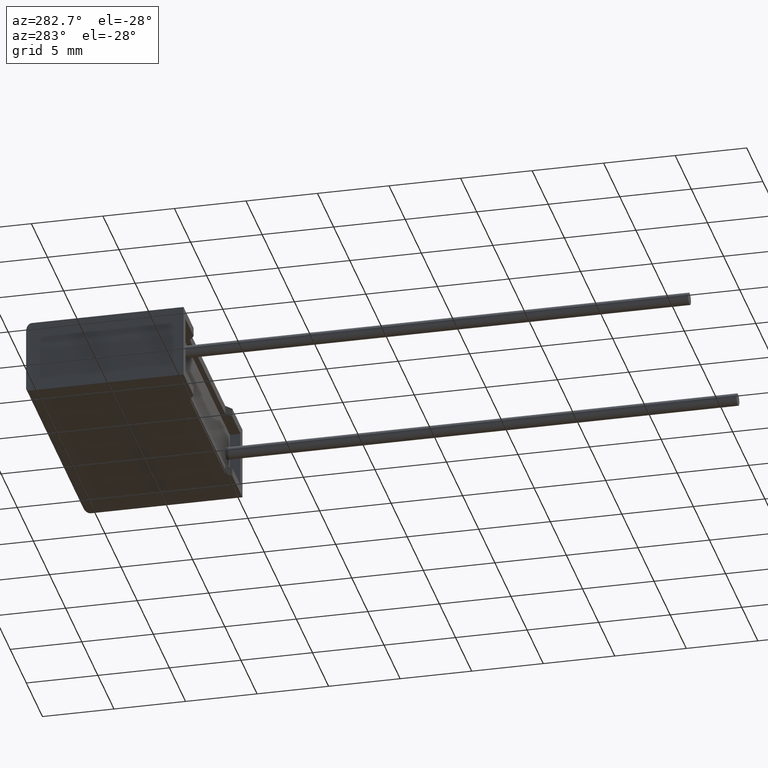
[diagram: clean part render]
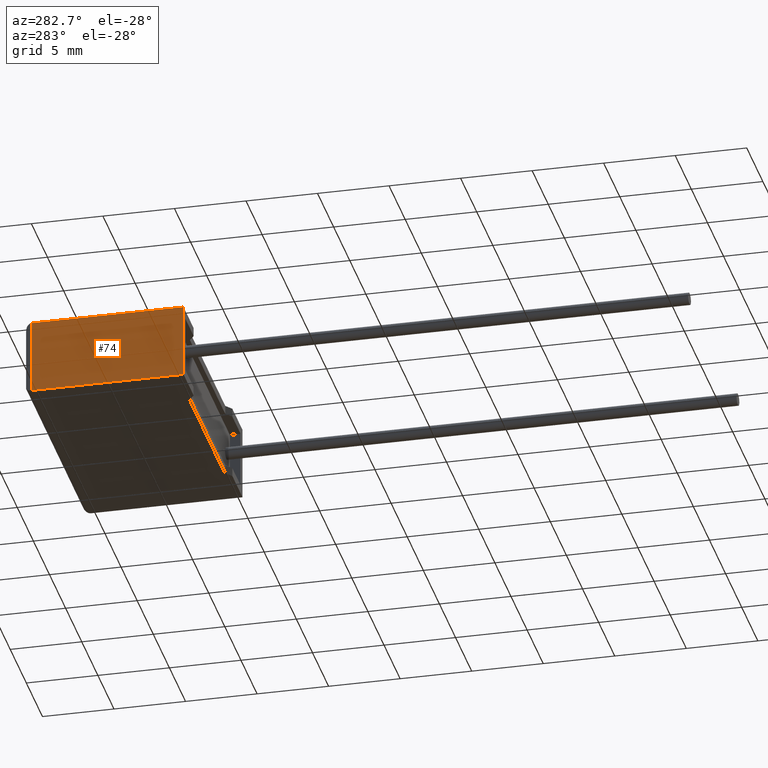
[diagram: same view with one face highlighted and labeled with its STEP entity id]
A machine part, auxiliary view. The second image highlights one B-rep face of the part: STEP entity #74.
In plain terms, the highlighted planar face has unit normal (1, 0, 0).
Its self-contained STEP definition (entity closure, byte-faithful):
#27 = VECTOR ( 'NONE', #2809, 1000.000000000000000 ) ;
#74 = ADVANCED_FACE ( 'NONE', ( #2036 ), #587, .F. ) ;
#111 = CARTESIAN_POINT ( 'NONE',  ( 0.000000000000000000, 0.000000000000000000, 5.200000000000000178 ) ) ;
#153 = CARTESIAN_POINT ( 'NONE',  ( 0.000000000000000000, 0.000000000000000000, 5.200000000000000178 ) ) ;
#336 = DIRECTION ( 'NONE',  ( 1.000000000000000000, 0.000000000000000000, 0.000000000000000000 ) ) ;
#587 = PLANE ( 'NONE',  #901 ) ;
#693 = LINE ( 'NONE', #2057, #27 ) ;
#702 = CARTESIAN_POINT ( 'NONE',  ( 0.000000000000000000, 0.000000000000000000, 0.000000000000000000 ) ) ;
#901 = AXIS2_PLACEMENT_3D ( 'NONE', #153, #336, #1765 ) ;
#914 = EDGE_CURVE ( 'NONE', #1044, #1576, #2129, .T. ) ;
#1025 = ORIENTED_EDGE ( 'NONE', *, *, #1514, .T. ) ;
#1044 = VERTEX_POINT ( 'NONE', #111 ) ;
#1133 = VECTOR ( 'NONE', #1860, 1000.000000000000000 ) ;
#1169 = LINE ( 'NONE', #702, #1133 ) ;
#1202 = CARTESIAN_POINT ( 'NONE',  ( 0.000000000000000000, 10.59999999999999964, 5.200000000000000178 ) ) ;
#1514 = EDGE_CURVE ( 'NONE', #1699, #2764, #693, .T. ) ;
#1576 = VERTEX_POINT ( 'NONE', #2152 ) ;
#1641 = CARTESIAN_POINT ( 'NONE',  ( 0.000000000000000000, 0.000000000000000000, 5.200000000000000178 ) ) ;
#1699 = VERTEX_POINT ( 'NONE', #1202 ) ;
#1756 = VECTOR ( 'NONE', #2354, 1000.000000000000000 ) ;
#1765 = DIRECTION ( 'NONE',  ( 0.000000000000000000, 0.000000000000000000, -1.000000000000000000 ) ) ;
#1797 = CARTESIAN_POINT ( 'NONE',  ( 0.000000000000000000, 0.000000000000000000, 5.200000000000000178 ) ) ;
#1860 = DIRECTION ( 'NONE',  ( -0.000000000000000000, -1.000000000000000000, -0.000000000000000000 ) ) ;
#1865 = EDGE_CURVE ( 'NONE', #2764, #1576, #1169, .T. ) ;
#2012 = CARTESIAN_POINT ( 'NONE',  ( 0.000000000000000000, 10.59999999999999964, 0.000000000000000000 ) ) ;
#2014 = VECTOR ( 'NONE', #2414, 1000.000000000000000 ) ;
#2036 = FACE_OUTER_BOUND ( 'NONE', #2050, .T. ) ;
#2050 = EDGE_LOOP ( 'NONE', ( #2704, #1025, #2863, #2406 ) ) ;
#2057 = CARTESIAN_POINT ( 'NONE',  ( 0.000000000000000000, 10.59999999999999964, 5.200000000000000178 ) ) ;
#2063 = EDGE_CURVE ( 'NONE', #1699, #1044, #2214, .T. ) ;
#2129 = LINE ( 'NONE', #1641, #1756 ) ;
#2152 = CARTESIAN_POINT ( 'NONE',  ( 0.000000000000000000, 0.000000000000000000, 0.000000000000000000 ) ) ;
#2214 = LINE ( 'NONE', #1797, #2014 ) ;
#2354 = DIRECTION ( 'NONE',  ( -0.000000000000000000, -0.000000000000000000, -1.000000000000000000 ) ) ;
#2406 = ORIENTED_EDGE ( 'NONE', *, *, #914, .F. ) ;
#2414 = DIRECTION ( 'NONE',  ( -0.000000000000000000, -1.000000000000000000, -0.000000000000000000 ) ) ;
#2704 = ORIENTED_EDGE ( 'NONE', *, *, #2063, .F. ) ;
#2764 = VERTEX_POINT ( 'NONE', #2012 ) ;
#2809 = DIRECTION ( 'NONE',  ( 0.000000000000000000, 0.000000000000000000, -1.000000000000000000 ) ) ;
#2863 = ORIENTED_EDGE ( 'NONE', *, *, #1865, .T. ) ;